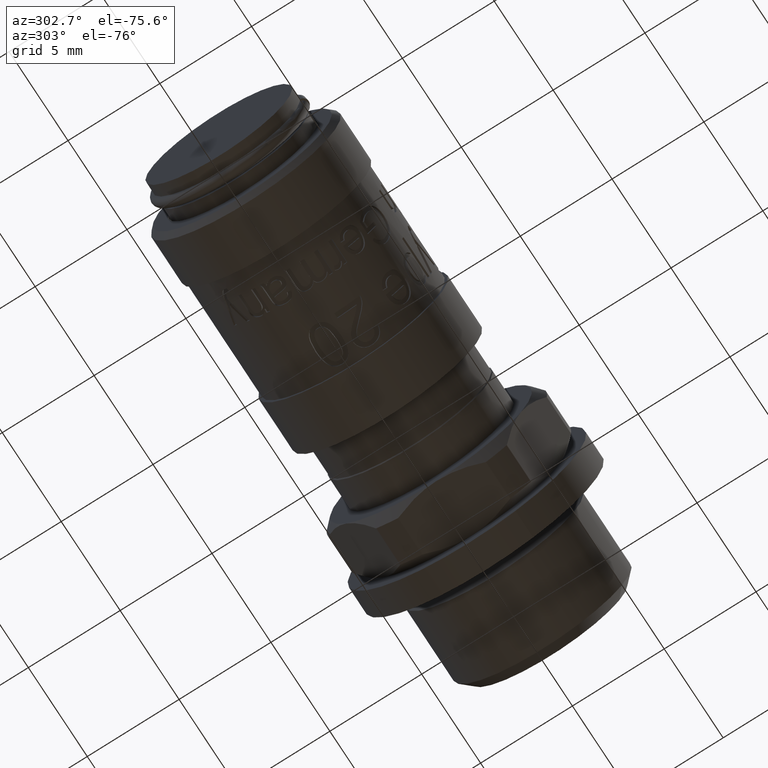
[diagram: clean part render]
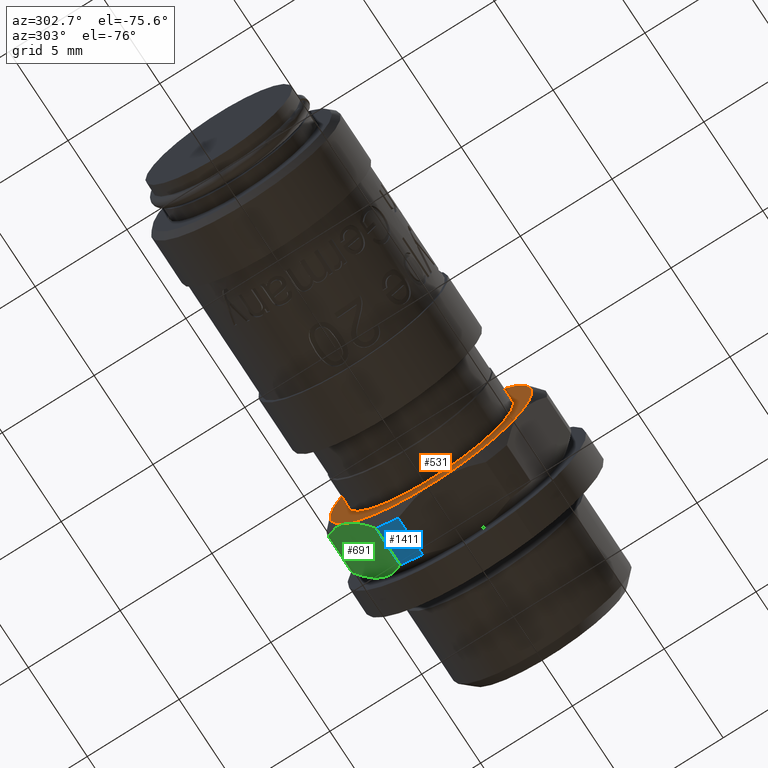
[diagram: same view with three faces highlighted in distinct colors, each labeled with its STEP entity id]
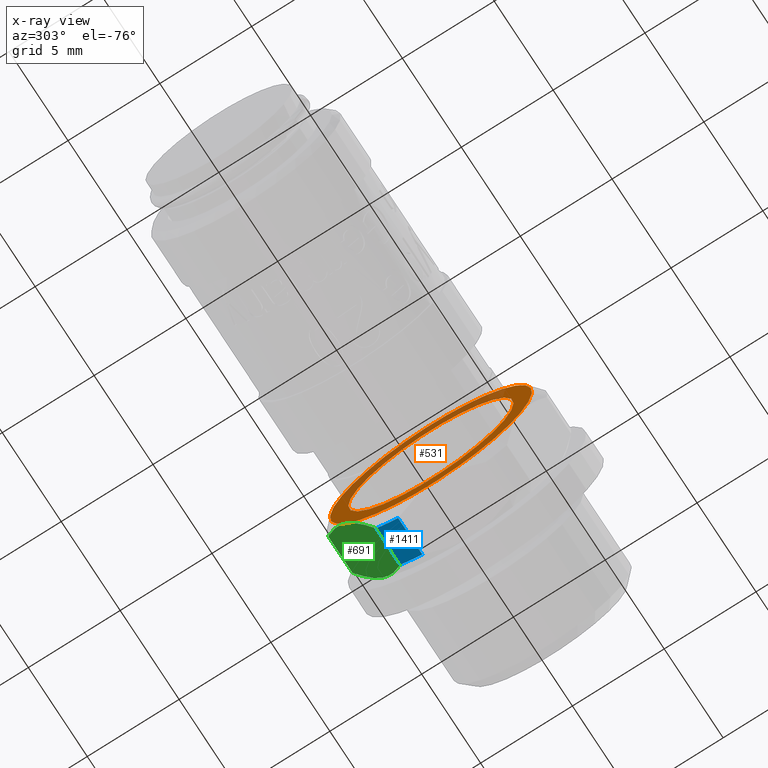
[diagram: x-ray of the same camera — body ghosted, the three highlighted faces saturated]
A machine part, auxiliary view with three faces highlighted in distinct colors.
The next image is the same camera in x-ray (body ghosted, the three faces saturated) — at least one of them is partly hidden behind the body in this view.
Their STEP definitions:

[orange] entity #531 — the highlighted planar face has unit normal (-1, 0, 0).
#459=CARTESIAN_POINT('',(18.000000000000004,-3.964311807727646,-2.021566692224416));
#460=DIRECTION('',(-1.0,0.0,0.0));
#461=DIRECTION('',(0.0,0.454284649938071,-0.890856586006213));
#462=AXIS2_PLACEMENT_3D('',#459,#460,#461);
#463=PLANE('',#462);
#464=CARTESIAN_POINT('',(18.000000000000004,-4.89971122303417,-2.498565574659391));
#465=VERTEX_POINT('',#464);
#466=CARTESIAN_POINT('',(18.000000000000004,-4.613676872193383,2.993991603025617));
#467=VERTEX_POINT('',#466);
#468=CARTESIAN_POINT('',(18.000000000000004,0.0,0.0));
#469=DIRECTION('',(-1.0,0.0,0.0));
#470=DIRECTION('',(0.0,-0.890856586006213,-0.454284649938071));
#471=AXIS2_PLACEMENT_3D('',#468,#469,#470);
#472=CIRCLE('',#471,5.500000000000001);
#473=EDGE_CURVE('',#465,#467,#472,.T.);
#474=ORIENTED_EDGE('',*,*,#473,.T.);
#475=CARTESIAN_POINT('',(18.000000000000004,0.286034350840786,5.49255717768501));
#476=VERTEX_POINT('',#475);
#477=CARTESIAN_POINT('',(18.000000000000004,0.0,0.0));
#478=DIRECTION('',(-1.0,0.0,0.0));
#479=DIRECTION('',(0.0,-0.890856586006213,-0.454284649938071));
#480=AXIS2_PLACEMENT_3D('',#477,#478,#479);
#481=CIRCLE('',#480,5.500000000000001);
#482=EDGE_CURVE('',#467,#476,#481,.T.);
#483=ORIENTED_EDGE('',*,*,#482,.T.);
#484=CARTESIAN_POINT('',(18.000000000000004,4.899711223034171,2.498565574659393));
#485=VERTEX_POINT('',#484);
#486=CARTESIAN_POINT('',(18.000000000000004,0.0,0.0));
#487=DIRECTION('',(-1.0,0.0,0.0));
#488=DIRECTION('',(0.0,-0.890856586006213,-0.454284649938071));
#489=AXIS2_PLACEMENT_3D('',#486,#487,#488);
#490=CIRCLE('',#489,5.500000000000001);
#491=EDGE_CURVE('',#476,#485,#490,.T.);
#492=ORIENTED_EDGE('',*,*,#491,.T.);
#493=CARTESIAN_POINT('',(18.000000000000004,4.613676872193384,-2.993991603025615));
#494=VERTEX_POINT('',#493);
#495=CARTESIAN_POINT('',(18.000000000000004,0.0,0.0));
#496=DIRECTION('',(-1.0,0.0,0.0));
#497=DIRECTION('',(0.0,-0.890856586006213,-0.454284649938071));
#498=AXIS2_PLACEMENT_3D('',#495,#496,#497);
#499=CIRCLE('',#498,5.500000000000001);
#500=EDGE_CURVE('',#485,#494,#499,.T.);
#501=ORIENTED_EDGE('',*,*,#500,.T.);
#502=CARTESIAN_POINT('',(18.000000000000004,-0.286034350840783,-5.49255717768501));
#503=VERTEX_POINT('',#502);
#504=CARTESIAN_POINT('',(18.000000000000004,0.0,0.0));
#505=DIRECTION('',(-1.0,0.0,0.0));
#506=DIRECTION('',(0.0,-0.890856586006213,-0.454284649938071));
#507=AXIS2_PLACEMENT_3D('',#504,#505,#506);
#508=CIRCLE('',#507,5.500000000000001);
#509=EDGE_CURVE('',#494,#503,#508,.T.);
#510=ORIENTED_EDGE('',*,*,#509,.T.);
#511=CARTESIAN_POINT('',(18.000000000000004,0.0,0.0));
#512=DIRECTION('',(-1.0,0.0,0.0));
#513=DIRECTION('',(0.0,-0.890856586006213,-0.454284649938071));
#514=AXIS2_PLACEMENT_3D('',#511,#512,#513);
#515=CIRCLE('',#514,5.500000000000001);
#516=EDGE_CURVE('',#503,#465,#515,.T.);
#517=ORIENTED_EDGE('',*,*,#516,.T.);
#518=EDGE_LOOP('',(#474,#483,#492,#501,#510,#517));
#519=FACE_OUTER_BOUND('',#518,.T.);
#520=CARTESIAN_POINT('',(18.0,4.5,0.0));
#521=VERTEX_POINT('',#520);
#522=CARTESIAN_POINT('',(18.0,0.0,0.0));
#523=DIRECTION('',(1.0,0.0,0.0));
#524=DIRECTION('',(0.0,1.0,0.0));
#525=AXIS2_PLACEMENT_3D('',#522,#523,#524);
#526=CIRCLE('',#525,4.5);
#527=EDGE_CURVE('',#521,#521,#526,.T.);
#528=ORIENTED_EDGE('',*,*,#527,.T.);
#529=EDGE_LOOP('',(#528));
#530=FACE_BOUND('',#529,.T.);
#531=ADVANCED_FACE('',(#519,#530),#463,.T.);

[blue] entity #1411 — the highlighted cylindrical surface (partial cylindrical patch) has radius 6 mm, axis along (-1, 0, 0).
#573=CARTESIAN_POINT('',(18.500000000000007,2.108636454280971,-5.617263773731603));
#574=VERTEX_POINT('',#573);
#588=CARTESIAN_POINT('',(20.550000000000004,2.108636454280971,-5.617263773731603));
#589=VERTEX_POINT('',#588);
#590=CARTESIAN_POINT('',(20.550000000000004,2.108636454280971,-5.617263773731603));
#591=DIRECTION('',(-1.0,0.0,0.0));
#592=VECTOR('',#591,2.049999999999997);
#593=LINE('',#590,#592);
#594=EDGE_CURVE('',#589,#574,#593,.T.);
#617=CARTESIAN_POINT('',(20.550000000000004,3.308342389436673,-5.005484055938694));
#618=VERTEX_POINT('',#617);
#632=CARTESIAN_POINT('',(18.500000000000007,3.308342389436673,-5.005484055938694));
#633=VERTEX_POINT('',#632);
#634=CARTESIAN_POINT('',(18.500000000000007,3.308342389436673,-5.005484055938694));
#635=DIRECTION('',(1.0,0.0,0.0));
#636=VECTOR('',#635,2.049999999999997);
#637=LINE('',#634,#636);
#638=EDGE_CURVE('',#633,#618,#637,.T.);
#1058=CARTESIAN_POINT('',(18.500000000000007,0.0,0.0));
#1059=DIRECTION('',(-1.0,0.0,0.0));
#1060=DIRECTION('',(0.0,-0.890856586006213,-0.454284649938071));
#1061=AXIS2_PLACEMENT_3D('',#1058,#1059,#1060);
#1062=CIRCLE('',#1061,6.000000000000002);
#1063=EDGE_CURVE('',#633,#574,#1062,.T.);
#1388=CARTESIAN_POINT('',(20.550000000000004,0.0,0.0));
#1389=DIRECTION('',(-1.0,0.0,0.0));
#1390=DIRECTION('',(0.0,-0.890856586006213,-0.454284649938071));
#1391=AXIS2_PLACEMENT_3D('',#1388,#1389,#1390);
#1392=CIRCLE('',#1391,6.000000000000002);
#1393=EDGE_CURVE('',#618,#589,#1392,.T.);
#1400=CARTESIAN_POINT('',(19.525000000000006,0.0,0.0));
#1401=DIRECTION('',(-1.0,0.0,0.0));
#1402=DIRECTION('',(0.0,-0.890856586006213,-0.454284649938071));
#1403=AXIS2_PLACEMENT_3D('',#1400,#1401,#1402);
#1404=CYLINDRICAL_SURFACE('',#1403,6.000000000000002);
#1405=ORIENTED_EDGE('',*,*,#594,.T.);
#1406=ORIENTED_EDGE('',*,*,#1063,.F.);
#1407=ORIENTED_EDGE('',*,*,#638,.T.);
#1408=ORIENTED_EDGE('',*,*,#1393,.T.);
#1409=EDGE_LOOP('',(#1405,#1406,#1407,#1408));
#1410=FACE_OUTER_BOUND('',#1409,.T.);
#1411=ADVANCED_FACE('',(#1410),#1404,.T.);

[green] entity #691 — the highlighted planar face has unit normal (0, -0.8389, 0.5444).
#316=CARTESIAN_POINT('',(21.050000000000004,4.613676872193384,-2.993991603025615));
#317=VERTEX_POINT('',#316);
#493=CARTESIAN_POINT('',(18.000000000000004,4.613676872193384,-2.993991603025615));
#494=VERTEX_POINT('',#493);
#612=CARTESIAN_POINT('',(17.236279842247992,4.613676872193384,-2.993991603025616));
#613=DIRECTION('',(0.0,-0.838850340398797,0.544362109641021));
#614=DIRECTION('',(0.0,0.544362109641021,0.838850340398797));
#615=AXIS2_PLACEMENT_3D('',#612,#613,#614);
#616=PLANE('',#615);
#617=CARTESIAN_POINT('',(20.550000000000004,3.308342389436673,-5.005484055938694));
#618=VERTEX_POINT('',#617);
#619=CARTESIAN_POINT('',(20.550000000000004,3.308342389436672,-5.005484055938693));
#620=CARTESIAN_POINT('',(21.050000000000004,3.989386467396694,-3.956009732679696));
#621=CARTESIAN_POINT('',(21.050000000000004,4.613676872193384,-2.993991603025615));
#629=(BOUNDED_CURVE()B_SPLINE_CURVE(2,(#619,#620,#621),.UNSPECIFIED.,.F.,.U.)B_SPLINE_CURVE_WITH_KNOTS((3,3),(0.0,0.246091936646243),.UNSPECIFIED.)CURVE()GEOMETRIC_REPRESENTATION_ITEM()RATIONAL_B_SPLINE_CURVE((1.0,1.022474716291103,1.0))REPRESENTATION_ITEM(''));
#630=EDGE_CURVE('',#618,#317,#629,.T.);
#631=ORIENTED_EDGE('',*,*,#630,.F.);
#632=CARTESIAN_POINT('',(18.500000000000007,3.308342389436673,-5.005484055938694));
#633=VERTEX_POINT('',#632);
#634=CARTESIAN_POINT('',(18.500000000000007,3.308342389436673,-5.005484055938694));
#635=DIRECTION('',(1.0,0.0,0.0));
#636=VECTOR('',#635,2.049999999999997);
#637=LINE('',#634,#636);
#638=EDGE_CURVE('',#633,#618,#637,.T.);
#639=ORIENTED_EDGE('',*,*,#638,.F.);
#640=CARTESIAN_POINT('',(18.000000000000004,4.613676872193384,-2.993991603025615));
#641=CARTESIAN_POINT('',(18.000000000000004,3.989386467396697,-3.956009732679695));
#642=CARTESIAN_POINT('',(18.500000000000007,3.308342389436672,-5.005484055938693));
#650=(BOUNDED_CURVE()B_SPLINE_CURVE(2,(#640,#641,#642),.UNSPECIFIED.,.F.,.U.)B_SPLINE_CURVE_WITH_KNOTS((3,3),(0.246091936646243,0.492183873292486),.UNSPECIFIED.)CURVE()GEOMETRIC_REPRESENTATION_ITEM()RATIONAL_B_SPLINE_CURVE((1.0,1.022474716291097,1.0))REPRESENTATION_ITEM(''));
#651=EDGE_CURVE('',#494,#633,#650,.T.);
#652=ORIENTED_EDGE('',*,*,#651,.F.);
#653=CARTESIAN_POINT('',(18.500000000000007,5.919011354950095,-0.982499150112536));
#654=VERTEX_POINT('',#653);
#655=CARTESIAN_POINT('',(18.500000000000007,5.919011354950095,-0.982499150112536));
#656=CARTESIAN_POINT('',(18.000000000000004,5.237967276990071,-2.031973473371535));
#657=CARTESIAN_POINT('',(18.000000000000004,4.613676872193384,-2.993991603025615));
#665=(BOUNDED_CURVE()B_SPLINE_CURVE(2,(#655,#656,#657),.UNSPECIFIED.,.F.,.U.)B_SPLINE_CURVE_WITH_KNOTS((3,3),(0.0,0.246091936646243),.UNSPECIFIED.)CURVE()GEOMETRIC_REPRESENTATION_ITEM()RATIONAL_B_SPLINE_CURVE((1.0,1.022474716291078,1.0))REPRESENTATION_ITEM(''));
#666=EDGE_CURVE('',#654,#494,#665,.T.);
#667=ORIENTED_EDGE('',*,*,#666,.F.);
#668=CARTESIAN_POINT('',(20.550000000000004,5.919011354950095,-0.982499150112536));
#669=VERTEX_POINT('',#668);
#670=CARTESIAN_POINT('',(20.550000000000004,5.919011354950095,-0.982499150112536));
#671=DIRECTION('',(-1.0,0.0,0.0));
#672=VECTOR('',#671,2.049999999999997);
#673=LINE('',#670,#672);
#674=EDGE_CURVE('',#669,#654,#673,.T.);
#675=ORIENTED_EDGE('',*,*,#674,.F.);
#676=CARTESIAN_POINT('',(21.050000000000004,4.613676872193384,-2.993991603025615));
#677=CARTESIAN_POINT('',(21.050000000000004,5.237967276990075,-2.031973473371535));
#678=CARTESIAN_POINT('',(20.550000000000004,5.919011354950095,-0.982499150112536));
#686=(BOUNDED_CURVE()B_SPLINE_CURVE(2,(#676,#677,#678),.UNSPECIFIED.,.F.,.U.)B_SPLINE_CURVE_WITH_KNOTS((3,3),(0.246091936646243,0.492183873292486),.UNSPECIFIED.)CURVE()GEOMETRIC_REPRESENTATION_ITEM()RATIONAL_B_SPLINE_CURVE((1.0,1.022474716291089,1.0))REPRESENTATION_ITEM(''));
#687=EDGE_CURVE('',#317,#669,#686,.T.);
#688=ORIENTED_EDGE('',*,*,#687,.F.);
#689=EDGE_LOOP('',(#631,#639,#652,#667,#675,#688));
#690=FACE_OUTER_BOUND('',#689,.T.);
#691=ADVANCED_FACE('',(#690),#616,.F.);